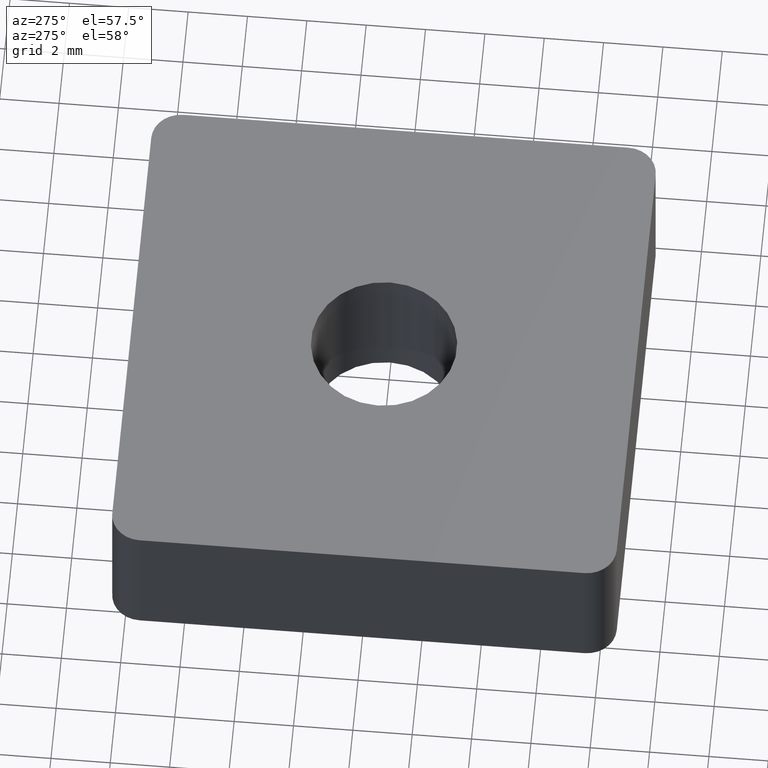
[diagram: clean part render]
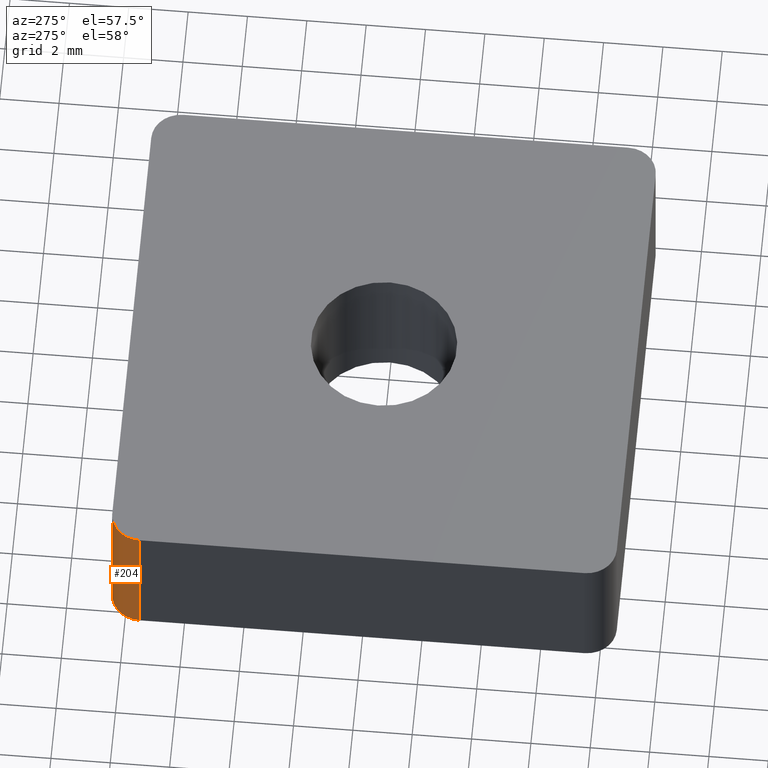
[diagram: same view with one face highlighted and labeled with its STEP entity id]
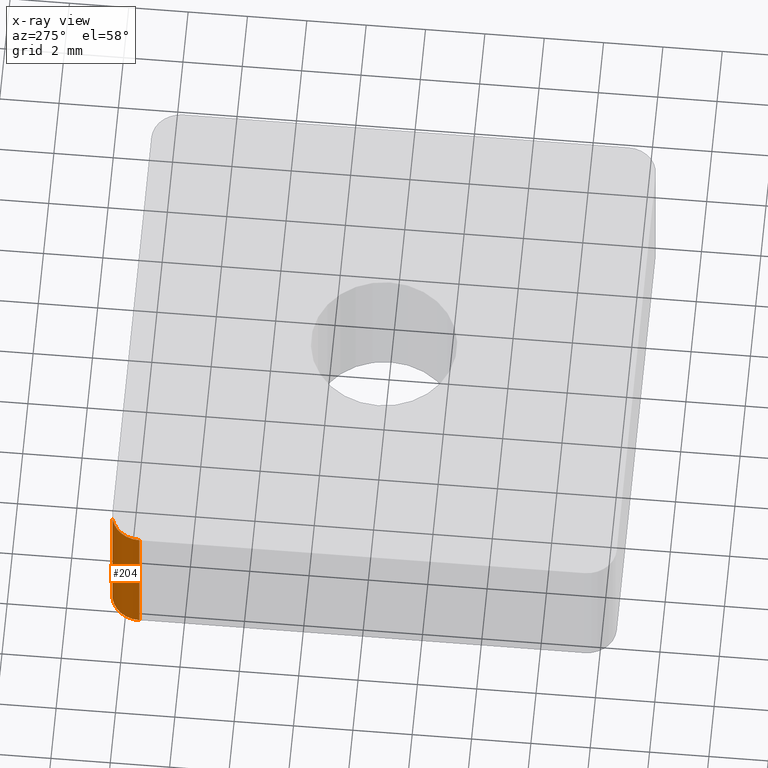
[diagram: x-ray of the same camera — body ghosted, the highlighted face saturated]
A machine part, auxiliary view. The second image highlights one B-rep face of the part: STEP entity #204.
The next image is the same camera in x-ray: the body ghosted, the highlighted face saturated — about 0% of this face is hidden behind the body in this view.
In plain terms, the highlighted cylindrical surface (edge-blend (fillet) strip) has radius 1 mm, axis along (0, 0, -1).
Its self-contained STEP definition (entity closure, byte-faithful):
#32=FACE_OUTER_BOUND('',#45,.T.);
#45=EDGE_LOOP('',(#182,#183,#184,#185));
#49=LINE('',#323,#66);
#63=LINE('',#353,#80);
#66=VECTOR('',#262,5.);
#80=VECTOR('',#282,5.);
#84=CIRCLE('',#238,1.);
#90=CIRCLE('',#245,1.);
#93=VERTEX_POINT('',#319);
#95=VERTEX_POINT('',#322);
#106=VERTEX_POINT('',#347);
#108=VERTEX_POINT('',#351);
#113=EDGE_CURVE('',#93,#95,#49,.T.);
#127=EDGE_CURVE('',#108,#106,#63,.T.);
#129=EDGE_CURVE('',#106,#93,#84,.T.);
#135=EDGE_CURVE('',#95,#108,#90,.T.);
#182=ORIENTED_EDGE('',*,*,#129,.F.);
#183=ORIENTED_EDGE('',*,*,#127,.F.);
#184=ORIENTED_EDGE('',*,*,#135,.F.);
#185=ORIENTED_EDGE('',*,*,#113,.F.);
#193=CYLINDRICAL_SURFACE('',#248,1.);
#204=ADVANCED_FACE('',(#32),#193,.T.);
#238=AXIS2_PLACEMENT_3D('',#356,#287,#288);
#245=AXIS2_PLACEMENT_3D('',#363,#301,#302);
#248=AXIS2_PLACEMENT_3D('',#366,#307,#308);
#262=DIRECTION('',(0.,0.,-1.));
#282=DIRECTION('',(0.,0.,1.));
#287=DIRECTION('center_axis',(0.,0.,1.));
#288=DIRECTION('ref_axis',(1.,0.,0.));
#301=DIRECTION('center_axis',(0.,0.,-1.));
#302=DIRECTION('ref_axis',(1.,0.,0.));
#307=DIRECTION('center_axis',(0.,0.,-1.));
#308=DIRECTION('ref_axis',(-0.707106781186548,0.707106781186548,0.));
#319=CARTESIAN_POINT('',(-8.5,7.50000000000001,0.));
#322=CARTESIAN_POINT('',(-8.5,7.50000000000001,-5.));
#323=CARTESIAN_POINT('',(-8.5,7.50000000000001,0.));
#347=CARTESIAN_POINT('',(-7.5,8.50000000000001,0.));
#351=CARTESIAN_POINT('',(-7.5,8.50000000000001,-5.));
#353=CARTESIAN_POINT('',(-7.5,8.50000000000001,-5.));
#356=CARTESIAN_POINT('Origin',(-7.5,7.50000000000001,0.));
#363=CARTESIAN_POINT('Origin',(-7.5,7.50000000000001,-5.));
#366=CARTESIAN_POINT('Origin',(-7.5,7.50000000000001,1.E-8));